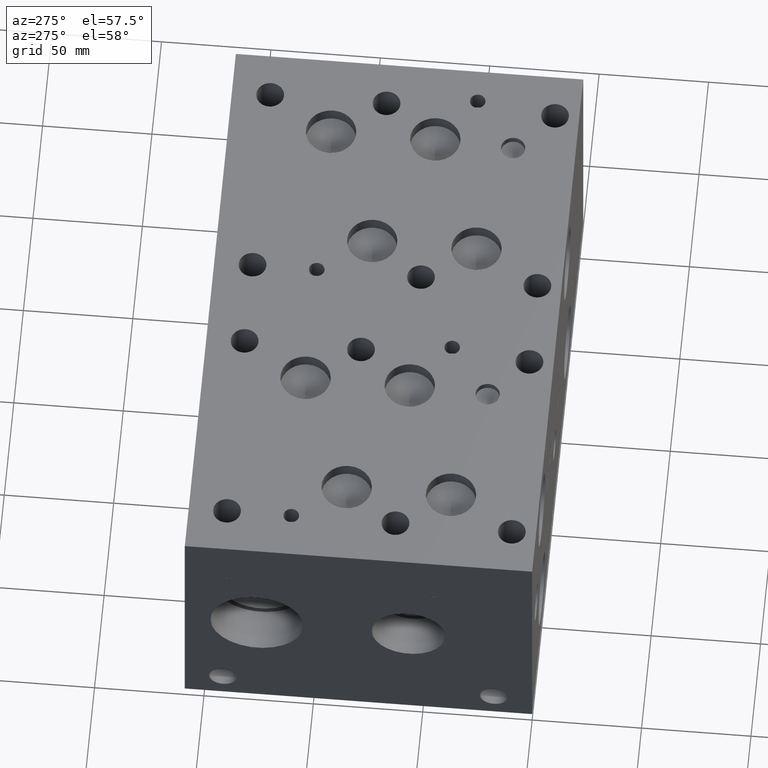
[diagram: clean part render]
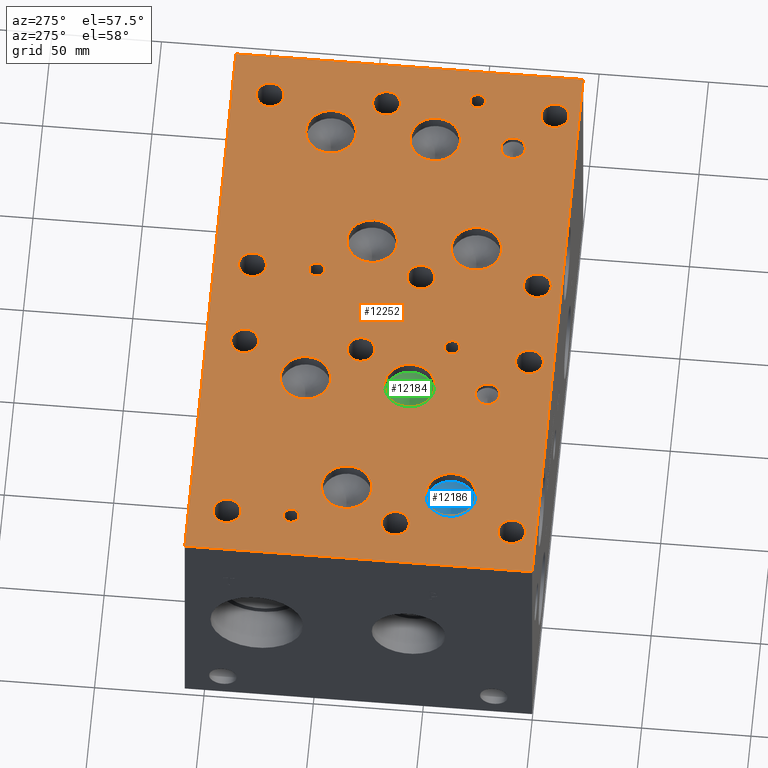
[diagram: same view with three faces highlighted in distinct colors, each labeled with its STEP entity id]
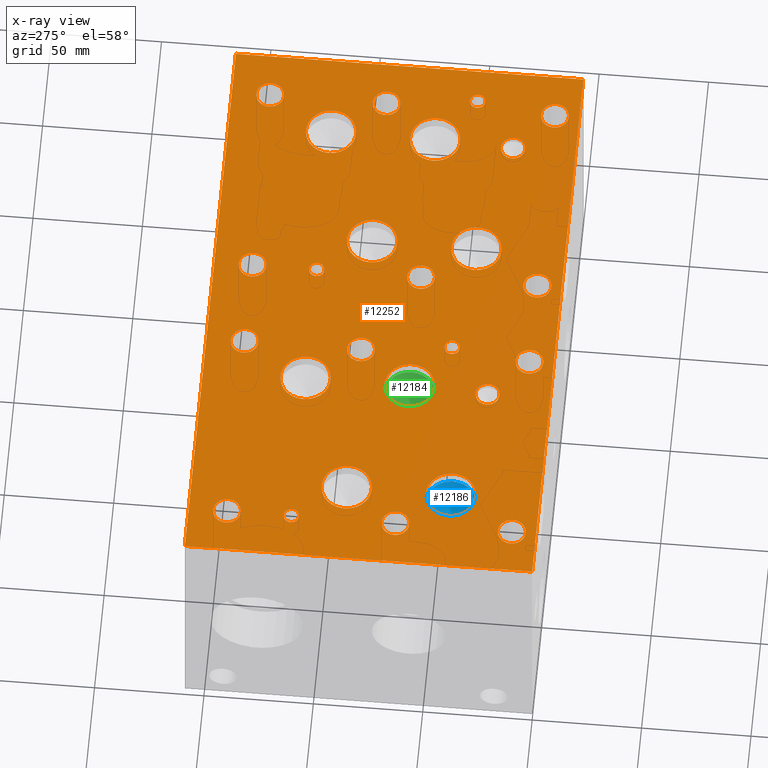
[diagram: x-ray of the same camera — body ghosted, the three highlighted faces saturated]
A machine part, auxiliary view with three faces highlighted in distinct colors.
The next image is the same camera in x-ray (body ghosted, the three faces saturated) — at least one of them is partly hidden behind the body in this view.
Their STEP definitions:

[orange] entity #12252 — the highlighted planar face has unit normal (0, 0, 1).
#240=CIRCLE('',#12773,5.5626);
#241=CIRCLE('',#12774,5.5626);
#244=CIRCLE('',#12779,5.55625);
#245=CIRCLE('',#12780,5.55625);
#248=CIRCLE('',#12785,11.50874);
#249=CIRCLE('',#12786,11.50874);
#252=CIRCLE('',#12791,11.5062);
#253=CIRCLE('',#12792,11.5062);
#256=CIRCLE('',#12797,11.5062);
#257=CIRCLE('',#12798,11.5062);
#260=CIRCLE('',#12803,11.5062);
#261=CIRCLE('',#12804,11.5062);
#264=CIRCLE('',#12809,11.5062);
#265=CIRCLE('',#12810,11.5062);
#268=CIRCLE('',#12815,11.5062);
#269=CIRCLE('',#12816,11.5062);
#272=CIRCLE('',#12821,11.5062);
#273=CIRCLE('',#12822,11.5062);
#276=CIRCLE('',#12827,11.5062);
#277=CIRCLE('',#12828,11.5062);
#280=CIRCLE('',#12833,3.5687);
#281=CIRCLE('',#12834,3.5687);
#284=CIRCLE('',#12839,3.5687);
#285=CIRCLE('',#12840,3.5687);
#288=CIRCLE('',#12845,3.5687);
#289=CIRCLE('',#12846,3.5687);
#292=CIRCLE('',#12851,3.5687);
#293=CIRCLE('',#12852,3.5687);
#299=CIRCLE('',#12861,6.35);
#300=CIRCLE('',#12862,6.35);
#306=CIRCLE('',#12872,6.35);
#307=CIRCLE('',#12873,6.35);
#313=CIRCLE('',#12883,6.35);
#314=CIRCLE('',#12884,6.35);
#320=CIRCLE('',#12894,6.35);
#321=CIRCLE('',#12895,6.35);
#327=CIRCLE('',#12905,6.35);
#328=CIRCLE('',#12906,6.35);
#334=CIRCLE('',#12916,6.35);
#335=CIRCLE('',#12917,6.35);
#341=CIRCLE('',#12927,6.35);
#342=CIRCLE('',#12928,6.35);
#348=CIRCLE('',#12938,6.35);
#349=CIRCLE('',#12939,6.35);
#355=CIRCLE('',#12949,6.35);
#356=CIRCLE('',#12950,6.35);
#362=CIRCLE('',#12960,6.35);
#363=CIRCLE('',#12961,6.35);
#369=CIRCLE('',#12971,6.35);
#370=CIRCLE('',#12972,6.35);
#376=CIRCLE('',#12982,6.35);
#377=CIRCLE('',#12983,6.35);
#466=FACE_BOUND('',#2310,.T.);
#467=FACE_BOUND('',#2311,.T.);
#468=FACE_BOUND('',#2312,.T.);
#469=FACE_BOUND('',#2313,.T.);
#470=FACE_BOUND('',#2314,.T.);
#471=FACE_BOUND('',#2315,.T.);
#472=FACE_BOUND('',#2316,.T.);
#473=FACE_BOUND('',#2317,.T.);
#474=FACE_BOUND('',#2318,.T.);
#475=FACE_BOUND('',#2319,.T.);
#476=FACE_BOUND('',#2320,.T.);
#477=FACE_BOUND('',#2321,.T.);
#478=FACE_BOUND('',#2322,.T.);
#479=FACE_BOUND('',#2323,.T.);
#480=FACE_BOUND('',#2324,.T.);
#481=FACE_BOUND('',#2325,.T.);
#482=FACE_BOUND('',#2326,.T.);
#483=FACE_BOUND('',#2327,.T.);
#484=FACE_BOUND('',#2328,.T.);
#485=FACE_BOUND('',#2329,.T.);
#486=FACE_BOUND('',#2330,.T.);
#487=FACE_BOUND('',#2331,.T.);
#488=FACE_BOUND('',#2332,.T.);
#489=FACE_BOUND('',#2333,.T.);
#490=FACE_BOUND('',#2334,.T.);
#491=FACE_BOUND('',#2335,.T.);
#1591=FACE_OUTER_BOUND('',#2309,.T.);
#2309=EDGE_LOOP('',(#10739,#10740,#10741,#10742));
#2310=EDGE_LOOP('',(#10743,#10744));
#2311=EDGE_LOOP('',(#10745,#10746));
#2312=EDGE_LOOP('',(#10747,#10748));
#2313=EDGE_LOOP('',(#10749,#10750));
#2314=EDGE_LOOP('',(#10751,#10752));
#2315=EDGE_LOOP('',(#10753,#10754));
#2316=EDGE_LOOP('',(#10755,#10756));
#2317=EDGE_LOOP('',(#10757,#10758));
#2318=EDGE_LOOP('',(#10759,#10760));
#2319=EDGE_LOOP('',(#10761,#10762));
#2320=EDGE_LOOP('',(#10763,#10764));
#2321=EDGE_LOOP('',(#10765,#10766));
#2322=EDGE_LOOP('',(#10767,#10768));
#2323=EDGE_LOOP('',(#10769,#10770));
#2324=EDGE_LOOP('',(#10771,#10772));
#2325=EDGE_LOOP('',(#10773,#10774));
#2326=EDGE_LOOP('',(#10775,#10776));
#2327=EDGE_LOOP('',(#10777,#10778));
#2328=EDGE_LOOP('',(#10779,#10780));
#2329=EDGE_LOOP('',(#10781,#10782));
#2330=EDGE_LOOP('',(#10783,#10784));
#2331=EDGE_LOOP('',(#10785,#10786));
#2332=EDGE_LOOP('',(#10787,#10788));
#2333=EDGE_LOOP('',(#10789,#10790));
#2334=EDGE_LOOP('',(#10791,#10792));
#2335=EDGE_LOOP('',(#10793,#10794));
#2395=LINE('',#15817,#3515);
#2455=LINE('',#16092,#3575);
#2714=LINE('',#18180,#3834);
#3456=LINE('',#21080,#4576);
#3515=VECTOR('',#13089,10.);
#3575=VECTOR('',#13203,10.);
#3834=VECTOR('',#13608,10.);
#4576=VECTOR('',#15550,10.);
#4627=VERTEX_POINT('',#15814);
#4628=VERTEX_POINT('',#15816);
#4687=VERTEX_POINT('',#16089);
#4688=VERTEX_POINT('',#16091);
#5584=VERTEX_POINT('',#20639);
#5585=VERTEX_POINT('',#20640);
#5589=VERTEX_POINT('',#20652);
#5590=VERTEX_POINT('',#20653);
#5594=VERTEX_POINT('',#20665);
#5595=VERTEX_POINT('',#20666);
#5599=VERTEX_POINT('',#20678);
#5600=VERTEX_POINT('',#20679);
#5604=VERTEX_POINT('',#20691);
#5605=VERTEX_POINT('',#20692);
#5609=VERTEX_POINT('',#20704);
#5610=VERTEX_POINT('',#20705);
#5614=VERTEX_POINT('',#20717);
#5615=VERTEX_POINT('',#20718);
#5619=VERTEX_POINT('',#20730);
#5620=VERTEX_POINT('',#20731);
#5624=VERTEX_POINT('',#20743);
#5625=VERTEX_POINT('',#20744);
#5629=VERTEX_POINT('',#20756);
#5630=VERTEX_POINT('',#20757);
#5634=VERTEX_POINT('',#20769);
#5635=VERTEX_POINT('',#20770);
#5639=VERTEX_POINT('',#20782);
#5640=VERTEX_POINT('',#20783);
#5644=VERTEX_POINT('',#20795);
#5645=VERTEX_POINT('',#20796);
#5649=VERTEX_POINT('',#20808);
#5650=VERTEX_POINT('',#20809);
#5657=VERTEX_POINT('',#20828);
#5658=VERTEX_POINT('',#20829);
#5665=VERTEX_POINT('',#20850);
#5666=VERTEX_POINT('',#20851);
#5673=VERTEX_POINT('',#20872);
#5674=VERTEX_POINT('',#20873);
#5681=VERTEX_POINT('',#20894);
#5682=VERTEX_POINT('',#20895);
#5689=VERTEX_POINT('',#20916);
#5690=VERTEX_POINT('',#20917);
#5697=VERTEX_POINT('',#20938);
#5698=VERTEX_POINT('',#20939);
#5705=VERTEX_POINT('',#20960);
#5706=VERTEX_POINT('',#20961);
#5713=VERTEX_POINT('',#20982);
#5714=VERTEX_POINT('',#20983);
#5721=VERTEX_POINT('',#21004);
#5722=VERTEX_POINT('',#21005);
#5729=VERTEX_POINT('',#21026);
#5730=VERTEX_POINT('',#21027);
#5737=VERTEX_POINT('',#21048);
#5738=VERTEX_POINT('',#21049);
#5745=VERTEX_POINT('',#21070);
#5746=VERTEX_POINT('',#21071);
#5821=EDGE_CURVE('',#4628,#4627,#2395,.T.);
#5905=EDGE_CURVE('',#4688,#4687,#2455,.T.);
#6354=EDGE_CURVE('',#4687,#4628,#2714,.T.);
#7228=EDGE_CURVE('',#5584,#5585,#240,.T.);
#7229=EDGE_CURVE('',#5585,#5584,#241,.T.);
#7234=EDGE_CURVE('',#5589,#5590,#244,.T.);
#7235=EDGE_CURVE('',#5590,#5589,#245,.T.);
#7240=EDGE_CURVE('',#5594,#5595,#248,.T.);
#7241=EDGE_CURVE('',#5595,#5594,#249,.T.);
#7246=EDGE_CURVE('',#5599,#5600,#252,.T.);
#7247=EDGE_CURVE('',#5600,#5599,#253,.T.);
#7252=EDGE_CURVE('',#5604,#5605,#256,.T.);
#7253=EDGE_CURVE('',#5605,#5604,#257,.T.);
#7258=EDGE_CURVE('',#5609,#5610,#260,.T.);
#7259=EDGE_CURVE('',#5610,#5609,#261,.T.);
#7264=EDGE_CURVE('',#5614,#5615,#264,.T.);
#7265=EDGE_CURVE('',#5615,#5614,#265,.T.);
#7270=EDGE_CURVE('',#5619,#5620,#268,.T.);
#7271=EDGE_CURVE('',#5620,#5619,#269,.T.);
#7276=EDGE_CURVE('',#5624,#5625,#272,.T.);
#7277=EDGE_CURVE('',#5625,#5624,#273,.T.);
#7282=EDGE_CURVE('',#5629,#5630,#276,.T.);
#7283=EDGE_CURVE('',#5630,#5629,#277,.T.);
#7288=EDGE_CURVE('',#5634,#5635,#280,.T.);
#7289=EDGE_CURVE('',#5635,#5634,#281,.T.);
#7294=EDGE_CURVE('',#5639,#5640,#284,.T.);
#7295=EDGE_CURVE('',#5640,#5639,#285,.T.);
#7300=EDGE_CURVE('',#5644,#5645,#288,.T.);
#7301=EDGE_CURVE('',#5645,#5644,#289,.T.);
#7306=EDGE_CURVE('',#5649,#5650,#292,.T.);
#7307=EDGE_CURVE('',#5650,#5649,#293,.T.);
#7315=EDGE_CURVE('',#5657,#5658,#299,.T.);
#7316=EDGE_CURVE('',#5658,#5657,#300,.T.);
#7325=EDGE_CURVE('',#5665,#5666,#306,.T.);
#7326=EDGE_CURVE('',#5666,#5665,#307,.T.);
#7335=EDGE_CURVE('',#5673,#5674,#313,.T.);
#7336=EDGE_CURVE('',#5674,#5673,#314,.T.);
#7345=EDGE_CURVE('',#5681,#5682,#320,.T.);
#7346=EDGE_CURVE('',#5682,#5681,#321,.T.);
#7355=EDGE_CURVE('',#5689,#5690,#327,.T.);
#7356=EDGE_CURVE('',#5690,#5689,#328,.T.);
#7365=EDGE_CURVE('',#5697,#5698,#334,.T.);
#7366=EDGE_CURVE('',#5698,#5697,#335,.T.);
#7375=EDGE_CURVE('',#5705,#5706,#341,.T.);
#7376=EDGE_CURVE('',#5706,#5705,#342,.T.);
#7385=EDGE_CURVE('',#5713,#5714,#348,.T.);
#7386=EDGE_CURVE('',#5714,#5713,#349,.T.);
#7395=EDGE_CURVE('',#5721,#5722,#355,.T.);
#7396=EDGE_CURVE('',#5722,#5721,#356,.T.);
#7405=EDGE_CURVE('',#5729,#5730,#362,.T.);
#7406=EDGE_CURVE('',#5730,#5729,#363,.T.);
#7415=EDGE_CURVE('',#5737,#5738,#369,.T.);
#7416=EDGE_CURVE('',#5738,#5737,#370,.T.);
#7425=EDGE_CURVE('',#5745,#5746,#376,.T.);
#7426=EDGE_CURVE('',#5746,#5745,#377,.T.);
#7430=EDGE_CURVE('',#4627,#4688,#3456,.T.);
#10739=ORIENTED_EDGE('',*,*,#6354,.T.);
#10740=ORIENTED_EDGE('',*,*,#5821,.T.);
#10741=ORIENTED_EDGE('',*,*,#7430,.T.);
#10742=ORIENTED_EDGE('',*,*,#5905,.T.);
#10743=ORIENTED_EDGE('',*,*,#7228,.T.);
#10744=ORIENTED_EDGE('',*,*,#7229,.T.);
#10745=ORIENTED_EDGE('',*,*,#7234,.T.);
#10746=ORIENTED_EDGE('',*,*,#7235,.T.);
#10747=ORIENTED_EDGE('',*,*,#7240,.T.);
#10748=ORIENTED_EDGE('',*,*,#7241,.T.);
#10749=ORIENTED_EDGE('',*,*,#7246,.T.);
#10750=ORIENTED_EDGE('',*,*,#7247,.T.);
#10751=ORIENTED_EDGE('',*,*,#7252,.T.);
#10752=ORIENTED_EDGE('',*,*,#7253,.T.);
#10753=ORIENTED_EDGE('',*,*,#7258,.T.);
#10754=ORIENTED_EDGE('',*,*,#7259,.T.);
#10755=ORIENTED_EDGE('',*,*,#7264,.T.);
#10756=ORIENTED_EDGE('',*,*,#7265,.T.);
#10757=ORIENTED_EDGE('',*,*,#7270,.T.);
#10758=ORIENTED_EDGE('',*,*,#7271,.T.);
#10759=ORIENTED_EDGE('',*,*,#7276,.T.);
#10760=ORIENTED_EDGE('',*,*,#7277,.T.);
#10761=ORIENTED_EDGE('',*,*,#7282,.T.);
#10762=ORIENTED_EDGE('',*,*,#7283,.T.);
#10763=ORIENTED_EDGE('',*,*,#7288,.T.);
#10764=ORIENTED_EDGE('',*,*,#7289,.T.);
#10765=ORIENTED_EDGE('',*,*,#7294,.T.);
#10766=ORIENTED_EDGE('',*,*,#7295,.T.);
#10767=ORIENTED_EDGE('',*,*,#7300,.T.);
#10768=ORIENTED_EDGE('',*,*,#7301,.T.);
#10769=ORIENTED_EDGE('',*,*,#7306,.T.);
#10770=ORIENTED_EDGE('',*,*,#7307,.T.);
#10771=ORIENTED_EDGE('',*,*,#7315,.T.);
#10772=ORIENTED_EDGE('',*,*,#7316,.T.);
#10773=ORIENTED_EDGE('',*,*,#7325,.T.);
#10774=ORIENTED_EDGE('',*,*,#7326,.T.);
#10775=ORIENTED_EDGE('',*,*,#7335,.T.);
#10776=ORIENTED_EDGE('',*,*,#7336,.T.);
#10777=ORIENTED_EDGE('',*,*,#7345,.T.);
#10778=ORIENTED_EDGE('',*,*,#7346,.T.);
#10779=ORIENTED_EDGE('',*,*,#7355,.T.);
#10780=ORIENTED_EDGE('',*,*,#7356,.T.);
#10781=ORIENTED_EDGE('',*,*,#7365,.T.);
#10782=ORIENTED_EDGE('',*,*,#7366,.T.);
#10783=ORIENTED_EDGE('',*,*,#7375,.T.);
#10784=ORIENTED_EDGE('',*,*,#7376,.T.);
#10785=ORIENTED_EDGE('',*,*,#7385,.T.);
#10786=ORIENTED_EDGE('',*,*,#7386,.T.);
#10787=ORIENTED_EDGE('',*,*,#7395,.T.);
#10788=ORIENTED_EDGE('',*,*,#7396,.T.);
#10789=ORIENTED_EDGE('',*,*,#7405,.T.);
#10790=ORIENTED_EDGE('',*,*,#7406,.T.);
#10791=ORIENTED_EDGE('',*,*,#7415,.T.);
#10792=ORIENTED_EDGE('',*,*,#7416,.T.);
#10793=ORIENTED_EDGE('',*,*,#7425,.T.);
#10794=ORIENTED_EDGE('',*,*,#7426,.T.);
#11156=PLANE('',#12989);
#12252=ADVANCED_FACE('',(#1591,#466,#467,#468,#469,#470,#471,#472,#473,
#474,#475,#476,#477,#478,#479,#480,#481,#482,#483,#484,#485,#486,#487,#488,
#489,#490,#491),#11156,.T.);
#12773=AXIS2_PLACEMENT_3D('',#20641,#15058,#15059);
#12774=AXIS2_PLACEMENT_3D('',#20642,#15060,#15061);
#12779=AXIS2_PLACEMENT_3D('',#20654,#15072,#15073);
#12780=AXIS2_PLACEMENT_3D('',#20655,#15074,#15075);
#12785=AXIS2_PLACEMENT_3D('',#20667,#15086,#15087);
#12786=AXIS2_PLACEMENT_3D('',#20668,#15088,#15089);
#12791=AXIS2_PLACEMENT_3D('',#20680,#15100,#15101);
#12792=AXIS2_PLACEMENT_3D('',#20681,#15102,#15103);
#12797=AXIS2_PLACEMENT_3D('',#20693,#15114,#15115);
#12798=AXIS2_PLACEMENT_3D('',#20694,#15116,#15117);
#12803=AXIS2_PLACEMENT_3D('',#20706,#15128,#15129);
#12804=AXIS2_PLACEMENT_3D('',#20707,#15130,#15131);
#12809=AXIS2_PLACEMENT_3D('',#20719,#15142,#15143);
#12810=AXIS2_PLACEMENT_3D('',#20720,#15144,#15145);
#12815=AXIS2_PLACEMENT_3D('',#20732,#15156,#15157);
#12816=AXIS2_PLACEMENT_3D('',#20733,#15158,#15159);
#12821=AXIS2_PLACEMENT_3D('',#20745,#15170,#15171);
#12822=AXIS2_PLACEMENT_3D('',#20746,#15172,#15173);
#12827=AXIS2_PLACEMENT_3D('',#20758,#15184,#15185);
#12828=AXIS2_PLACEMENT_3D('',#20759,#15186,#15187);
#12833=AXIS2_PLACEMENT_3D('',#20771,#15198,#15199);
#12834=AXIS2_PLACEMENT_3D('',#20772,#15200,#15201);
#12839=AXIS2_PLACEMENT_3D('',#20784,#15212,#15213);
#12840=AXIS2_PLACEMENT_3D('',#20785,#15214,#15215);
#12845=AXIS2_PLACEMENT_3D('',#20797,#15226,#15227);
#12846=AXIS2_PLACEMENT_3D('',#20798,#15228,#15229);
#12851=AXIS2_PLACEMENT_3D('',#20810,#15240,#15241);
#12852=AXIS2_PLACEMENT_3D('',#20811,#15242,#15243);
#12861=AXIS2_PLACEMENT_3D('',#20830,#15262,#15263);
#12862=AXIS2_PLACEMENT_3D('',#20831,#15264,#15265);
#12872=AXIS2_PLACEMENT_3D('',#20852,#15287,#15288);
#12873=AXIS2_PLACEMENT_3D('',#20853,#15289,#15290);
#12883=AXIS2_PLACEMENT_3D('',#20874,#15312,#15313);
#12884=AXIS2_PLACEMENT_3D('',#20875,#15314,#15315);
#12894=AXIS2_PLACEMENT_3D('',#20896,#15337,#15338);
#12895=AXIS2_PLACEMENT_3D('',#20897,#15339,#15340);
#12905=AXIS2_PLACEMENT_3D('',#20918,#15362,#15363);
#12906=AXIS2_PLACEMENT_3D('',#20919,#15364,#15365);
#12916=AXIS2_PLACEMENT_3D('',#20940,#15387,#15388);
#12917=AXIS2_PLACEMENT_3D('',#20941,#15389,#15390);
#12927=AXIS2_PLACEMENT_3D('',#20962,#15412,#15413);
#12928=AXIS2_PLACEMENT_3D('',#20963,#15414,#15415);
#12938=AXIS2_PLACEMENT_3D('',#20984,#15437,#15438);
#12939=AXIS2_PLACEMENT_3D('',#20985,#15439,#15440);
#12949=AXIS2_PLACEMENT_3D('',#21006,#15462,#15463);
#12950=AXIS2_PLACEMENT_3D('',#21007,#15464,#15465);
#12960=AXIS2_PLACEMENT_3D('',#21028,#15487,#15488);
#12961=AXIS2_PLACEMENT_3D('',#21029,#15489,#15490);
#12971=AXIS2_PLACEMENT_3D('',#21050,#15512,#15513);
#12972=AXIS2_PLACEMENT_3D('',#21051,#15514,#15515);
#12982=AXIS2_PLACEMENT_3D('',#21072,#15537,#15538);
#12983=AXIS2_PLACEMENT_3D('',#21073,#15539,#15540);
#12989=AXIS2_PLACEMENT_3D('',#21083,#15555,#15556);
#13089=DIRECTION('',(0.,1.,0.));
#13203=DIRECTION('',(0.,-1.,0.));
#13608=DIRECTION('',(1.,0.,0.));
#15058=DIRECTION('center_axis',(0.,0.,-1.));
#15059=DIRECTION('ref_axis',(1.,0.,0.));
#15060=DIRECTION('center_axis',(0.,0.,-1.));
#15061=DIRECTION('ref_axis',(1.,0.,0.));
#15072=DIRECTION('center_axis',(0.,0.,-1.));
#15073=DIRECTION('ref_axis',(1.,0.,0.));
#15074=DIRECTION('center_axis',(0.,0.,-1.));
#15075=DIRECTION('ref_axis',(1.,0.,0.));
#15086=DIRECTION('center_axis',(0.,0.,-1.));
#15087=DIRECTION('ref_axis',(1.,0.,0.));
#15088=DIRECTION('center_axis',(0.,0.,-1.));
#15089=DIRECTION('ref_axis',(1.,0.,0.));
#15100=DIRECTION('center_axis',(0.,0.,-1.));
#15101=DIRECTION('ref_axis',(1.,0.,0.));
#15102=DIRECTION('center_axis',(0.,0.,-1.));
#15103=DIRECTION('ref_axis',(1.,0.,0.));
#15114=DIRECTION('center_axis',(0.,0.,-1.));
#15115=DIRECTION('ref_axis',(1.,0.,0.));
#15116=DIRECTION('center_axis',(0.,0.,-1.));
#15117=DIRECTION('ref_axis',(1.,0.,0.));
#15128=DIRECTION('center_axis',(0.,0.,-1.));
#15129=DIRECTION('ref_axis',(1.,0.,0.));
#15130=DIRECTION('center_axis',(0.,0.,-1.));
#15131=DIRECTION('ref_axis',(1.,0.,0.));
#15142=DIRECTION('center_axis',(0.,0.,-1.));
#15143=DIRECTION('ref_axis',(1.,0.,0.));
#15144=DIRECTION('center_axis',(0.,0.,-1.));
#15145=DIRECTION('ref_axis',(1.,0.,0.));
#15156=DIRECTION('center_axis',(0.,0.,-1.));
#15157=DIRECTION('ref_axis',(1.,0.,0.));
#15158=DIRECTION('center_axis',(0.,0.,-1.));
#15159=DIRECTION('ref_axis',(1.,0.,0.));
#15170=DIRECTION('center_axis',(0.,0.,-1.));
#15171=DIRECTION('ref_axis',(1.,0.,0.));
#15172=DIRECTION('center_axis',(0.,0.,-1.));
#15173=DIRECTION('ref_axis',(1.,0.,0.));
#15184=DIRECTION('center_axis',(0.,0.,-1.));
#15185=DIRECTION('ref_axis',(1.,0.,0.));
#15186=DIRECTION('center_axis',(0.,0.,-1.));
#15187=DIRECTION('ref_axis',(1.,0.,0.));
#15198=DIRECTION('center_axis',(0.,0.,-1.));
#15199=DIRECTION('ref_axis',(1.,0.,0.));
#15200=DIRECTION('center_axis',(0.,0.,-1.));
#15201=DIRECTION('ref_axis',(1.,0.,0.));
#15212=DIRECTION('center_axis',(0.,0.,-1.));
#15213=DIRECTION('ref_axis',(1.,0.,0.));
#15214=DIRECTION('center_axis',(0.,0.,-1.));
#15215=DIRECTION('ref_axis',(1.,0.,0.));
#15226=DIRECTION('center_axis',(0.,0.,-1.));
#15227=DIRECTION('ref_axis',(1.,0.,0.));
#15228=DIRECTION('center_axis',(0.,0.,-1.));
#15229=DIRECTION('ref_axis',(1.,0.,0.));
#15240=DIRECTION('center_axis',(0.,0.,-1.));
#15241=DIRECTION('ref_axis',(1.,0.,0.));
#15242=DIRECTION('center_axis',(0.,0.,-1.));
#15243=DIRECTION('ref_axis',(1.,0.,0.));
#15262=DIRECTION('center_axis',(0.,0.,-1.));
#15263=DIRECTION('ref_axis',(1.,0.,0.));
#15264=DIRECTION('center_axis',(0.,0.,-1.));
#15265=DIRECTION('ref_axis',(1.,0.,0.));
#15287=DIRECTION('center_axis',(0.,0.,-1.));
#15288=DIRECTION('ref_axis',(1.,0.,0.));
#15289=DIRECTION('center_axis',(0.,0.,-1.));
#15290=DIRECTION('ref_axis',(1.,0.,0.));
#15312=DIRECTION('center_axis',(0.,0.,-1.));
#15313=DIRECTION('ref_axis',(1.,0.,0.));
#15314=DIRECTION('center_axis',(0.,0.,-1.));
#15315=DIRECTION('ref_axis',(1.,0.,0.));
#15337=DIRECTION('center_axis',(0.,0.,-1.));
#15338=DIRECTION('ref_axis',(1.,0.,0.));
#15339=DIRECTION('center_axis',(0.,0.,-1.));
#15340=DIRECTION('ref_axis',(1.,0.,0.));
#15362=DIRECTION('center_axis',(0.,0.,-1.));
#15363=DIRECTION('ref_axis',(1.,0.,0.));
#15364=DIRECTION('center_axis',(0.,0.,-1.));
#15365=DIRECTION('ref_axis',(1.,0.,0.));
#15387=DIRECTION('center_axis',(0.,0.,-1.));
#15388=DIRECTION('ref_axis',(1.,0.,0.));
#15389=DIRECTION('center_axis',(0.,0.,-1.));
#15390=DIRECTION('ref_axis',(1.,0.,0.));
#15412=DIRECTION('center_axis',(0.,0.,-1.));
#15413=DIRECTION('ref_axis',(1.,0.,0.));
#15414=DIRECTION('center_axis',(0.,0.,-1.));
#15415=DIRECTION('ref_axis',(1.,0.,0.));
#15437=DIRECTION('center_axis',(0.,0.,-1.));
#15438=DIRECTION('ref_axis',(1.,0.,0.));
#15439=DIRECTION('center_axis',(0.,0.,-1.));
#15440=DIRECTION('ref_axis',(1.,0.,0.));
#15462=DIRECTION('center_axis',(0.,0.,-1.));
#15463=DIRECTION('ref_axis',(1.,0.,0.));
#15464=DIRECTION('center_axis',(0.,0.,-1.));
#15465=DIRECTION('ref_axis',(1.,0.,0.));
#15487=DIRECTION('center_axis',(0.,0.,-1.));
#15488=DIRECTION('ref_axis',(1.,0.,0.));
#15489=DIRECTION('center_axis',(0.,0.,-1.));
#15490=DIRECTION('ref_axis',(1.,0.,0.));
#15512=DIRECTION('center_axis',(0.,0.,-1.));
#15513=DIRECTION('ref_axis',(1.,0.,0.));
#15514=DIRECTION('center_axis',(0.,0.,-1.));
#15515=DIRECTION('ref_axis',(1.,0.,0.));
#15537=DIRECTION('center_axis',(0.,0.,-1.));
#15538=DIRECTION('ref_axis',(1.,0.,0.));
#15539=DIRECTION('center_axis',(0.,0.,-1.));
#15540=DIRECTION('ref_axis',(1.,0.,0.));
#15550=DIRECTION('',(-1.,0.,0.));
#15555=DIRECTION('center_axis',(0.,0.,1.));
#15556=DIRECTION('ref_axis',(1.,0.,0.));
#15814=CARTESIAN_POINT('',(266.7,158.75,120.65));
#15816=CARTESIAN_POINT('',(266.7,0.,120.65));
#15817=CARTESIAN_POINT('',(266.7,0.,120.65));
#16089=CARTESIAN_POINT('',(0.,0.,120.65));
#16091=CARTESIAN_POINT('',(0.,158.75,120.65));
#16092=CARTESIAN_POINT('',(0.,158.75,120.65));
#18180=CARTESIAN_POINT('',(0.,0.,120.65));
#20639=CARTESIAN_POINT('',(232.5624,28.575,120.65));
#20640=CARTESIAN_POINT('',(221.4372,28.575,120.65));
#20641=CARTESIAN_POINT('Origin',(226.9998,28.575,120.65));
#20642=CARTESIAN_POINT('Origin',(226.9998,28.575,120.65));
#20652=CARTESIAN_POINT('',(99.21875,28.56992,120.65));
#20653=CARTESIAN_POINT('',(88.10625,28.56992,120.65));
#20654=CARTESIAN_POINT('Origin',(93.6625,28.56992,120.65));
#20655=CARTESIAN_POINT('Origin',(93.6625,28.56992,120.65));
#20665=CARTESIAN_POINT('',(106.75874,111.9124,120.65));
#20666=CARTESIAN_POINT('',(83.74126,111.9124,120.65));
#20667=CARTESIAN_POINT('Origin',(95.25,111.9124,120.65));
#20668=CARTESIAN_POINT('Origin',(95.25,111.9124,120.65));
#20678=CARTESIAN_POINT('',(182.9562,88.1126,120.65));
#20679=CARTESIAN_POINT('',(159.9438,88.1126,120.65));
#20680=CARTESIAN_POINT('Origin',(171.45,88.1126,120.65));
#20681=CARTESIAN_POINT('Origin',(171.45,88.1126,120.65));
#20691=CARTESIAN_POINT('',(240.1062,64.2874,120.65));
#20692=CARTESIAN_POINT('',(217.0938,64.2874,120.65));
#20693=CARTESIAN_POINT('Origin',(228.6,64.2874,120.65));
#20694=CARTESIAN_POINT('Origin',(228.6,64.2874,120.65));
#20704=CARTESIAN_POINT('',(49.6062,88.1126,120.65));
#20705=CARTESIAN_POINT('',(26.5938,88.1126,120.65));
#20706=CARTESIAN_POINT('Origin',(38.1,88.1126,120.65));
#20707=CARTESIAN_POINT('Origin',(38.1,88.1126,120.65));
#20717=CARTESIAN_POINT('',(106.7562,64.2874,120.65));
#20718=CARTESIAN_POINT('',(83.7438,64.2874,120.65));
#20719=CARTESIAN_POINT('Origin',(95.25,64.2874,120.65));
#20720=CARTESIAN_POINT('Origin',(95.25,64.2874,120.65));
#20730=CARTESIAN_POINT('',(49.6062,40.4622,120.65));
#20731=CARTESIAN_POINT('',(26.5938,40.4622,120.65));
#20732=CARTESIAN_POINT('Origin',(38.1,40.4622,120.65));
#20733=CARTESIAN_POINT('Origin',(38.1,40.4622,120.65));
#20743=CARTESIAN_POINT('',(240.1062,111.9124,120.65));
#20744=CARTESIAN_POINT('',(217.0938,111.9124,120.65));
#20745=CARTESIAN_POINT('Origin',(228.6,111.9124,120.65));
#20746=CARTESIAN_POINT('Origin',(228.6,111.9124,120.65));
#20756=CARTESIAN_POINT('',(182.9562,40.4622,120.65));
#20757=CARTESIAN_POINT('',(159.9438,40.4622,120.65));
#20758=CARTESIAN_POINT('Origin',(171.45,40.4622,120.65));
#20759=CARTESIAN_POINT('Origin',(171.45,40.4622,120.65));
#20769=CARTESIAN_POINT('',(157.5435,111.9124,120.65));
#20770=CARTESIAN_POINT('',(150.4061,111.9124,120.65));
#20771=CARTESIAN_POINT('Origin',(153.9748,111.9124,120.65));
#20772=CARTESIAN_POINT('Origin',(153.9748,111.9124,120.65));
#20782=CARTESIAN_POINT('',(24.1935,111.9124,120.65));
#20783=CARTESIAN_POINT('',(17.0561,111.9124,120.65));
#20784=CARTESIAN_POINT('Origin',(20.6248,111.9124,120.65));
#20785=CARTESIAN_POINT('Origin',(20.6248,111.9124,120.65));
#20795=CARTESIAN_POINT('',(121.0437,46.8376,120.65));
#20796=CARTESIAN_POINT('',(113.9063,46.8376,120.65));
#20797=CARTESIAN_POINT('Origin',(117.475,46.8376,120.65));
#20798=CARTESIAN_POINT('Origin',(117.475,46.8376,120.65));
#20808=CARTESIAN_POINT('',(254.3937,46.8376,120.65));
#20809=CARTESIAN_POINT('',(247.2563,46.8376,120.65));
#20810=CARTESIAN_POINT('Origin',(250.825,46.8376,120.65));
#20811=CARTESIAN_POINT('Origin',(250.825,46.8376,120.65));
#20828=CARTESIAN_POINT('',(160.3248,11.0998,120.65));
#20829=CARTESIAN_POINT('',(147.6248,11.0998,120.65));
#20830=CARTESIAN_POINT('Origin',(153.9748,11.0998,120.65));
#20831=CARTESIAN_POINT('Origin',(153.9748,11.0998,120.65));
#20850=CARTESIAN_POINT('',(252.4252,88.0872,120.65));
#20851=CARTESIAN_POINT('',(239.7252,88.0872,120.65));
#20852=CARTESIAN_POINT('Origin',(246.0752,88.0872,120.65));
#20853=CARTESIAN_POINT('Origin',(246.0752,88.0872,120.65));
#20872=CARTESIAN_POINT('',(160.3248,141.2748,120.65));
#20873=CARTESIAN_POINT('',(147.6248,141.2748,120.65));
#20874=CARTESIAN_POINT('Origin',(153.9748,141.2748,120.65));
#20875=CARTESIAN_POINT('Origin',(153.9748,141.2748,120.65));
#20894=CARTESIAN_POINT('',(26.9875,11.10742,120.65));
#20895=CARTESIAN_POINT('',(14.2875,11.10742,120.65));
#20896=CARTESIAN_POINT('Origin',(20.6375,11.10742,120.65));
#20897=CARTESIAN_POINT('Origin',(20.6375,11.10742,120.65));
#20916=CARTESIAN_POINT('',(119.0752,88.0999,120.65));
#20917=CARTESIAN_POINT('',(106.3752,88.0999,120.65));
#20918=CARTESIAN_POINT('Origin',(112.7252,88.0999,120.65));
#20919=CARTESIAN_POINT('Origin',(112.7252,88.0999,120.65));
#20938=CARTESIAN_POINT('',(26.9748,141.2748,120.65));
#20939=CARTESIAN_POINT('',(14.2748,141.2748,120.65));
#20940=CARTESIAN_POINT('Origin',(20.6248,141.2748,120.65));
#20941=CARTESIAN_POINT('Origin',(20.6248,141.2748,120.65));
#20960=CARTESIAN_POINT('',(119.0625,141.27988,120.65));
#20961=CARTESIAN_POINT('',(106.3625,141.27988,120.65));
#20962=CARTESIAN_POINT('Origin',(112.7125,141.27988,120.65));
#20963=CARTESIAN_POINT('Origin',(112.7125,141.27988,120.65));
#20982=CARTESIAN_POINT('',(119.0625,11.10742,120.65));
#20983=CARTESIAN_POINT('',(106.3625,11.10742,120.65));
#20984=CARTESIAN_POINT('Origin',(112.7125,11.10742,120.65));
#20985=CARTESIAN_POINT('Origin',(112.7125,11.10742,120.65));
#21004=CARTESIAN_POINT('',(27.0002,64.2874,120.65));
#21005=CARTESIAN_POINT('',(14.3002,64.2874,120.65));
#21006=CARTESIAN_POINT('Origin',(20.6502,64.2874,120.65));
#21007=CARTESIAN_POINT('Origin',(20.6502,64.2874,120.65));
#21026=CARTESIAN_POINT('',(252.3998,141.2748,120.65));
#21027=CARTESIAN_POINT('',(239.6998,141.2748,120.65));
#21028=CARTESIAN_POINT('Origin',(246.0498,141.2748,120.65));
#21029=CARTESIAN_POINT('Origin',(246.0498,141.2748,120.65));
#21048=CARTESIAN_POINT('',(252.3998,11.0998,120.65));
#21049=CARTESIAN_POINT('',(239.6998,11.0998,120.65));
#21050=CARTESIAN_POINT('Origin',(246.0498,11.0998,120.65));
#21051=CARTESIAN_POINT('Origin',(246.0498,11.0998,120.65));
#21070=CARTESIAN_POINT('',(160.3502,64.2874,120.65));
#21071=CARTESIAN_POINT('',(147.6502,64.2874,120.65));
#21072=CARTESIAN_POINT('Origin',(154.0002,64.2874,120.65));
#21073=CARTESIAN_POINT('Origin',(154.0002,64.2874,120.65));
#21080=CARTESIAN_POINT('',(266.7,158.75,120.65));
#21083=CARTESIAN_POINT('Origin',(133.35,79.375,120.65));

[blue] entity #12186 — the highlighted conical surface has half-angle 60 deg.
#109=CONICAL_SURFACE('',#12811,5.7531,1.0471975511966);
#266=CIRCLE('',#12812,11.5062);
#267=CIRCLE('',#12813,11.5062);
#1525=FACE_OUTER_BOUND('',#2231,.T.);
#2231=EDGE_LOOP('',(#10432,#10433,#10434,#10435));
#3405=LINE('',#20727,#4525);
#4525=VECTOR('',#15151,5.7531);
#5616=VERTEX_POINT('',#20723);
#5617=VERTEX_POINT('',#20724);
#5618=VERTEX_POINT('',#20726);
#7267=EDGE_CURVE('',#5616,#5617,#266,.T.);
#7268=EDGE_CURVE('',#5617,#5618,#3405,.T.);
#7269=EDGE_CURVE('',#5617,#5616,#267,.T.);
#10432=ORIENTED_EDGE('',*,*,#7267,.T.);
#10433=ORIENTED_EDGE('',*,*,#7268,.T.);
#10434=ORIENTED_EDGE('',*,*,#7268,.F.);
#10435=ORIENTED_EDGE('',*,*,#7269,.T.);
#12186=ADVANCED_FACE('',(#1525),#109,.F.);
#12811=AXIS2_PLACEMENT_3D('',#20722,#15147,#15148);
#12812=AXIS2_PLACEMENT_3D('',#20725,#15149,#15150);
#12813=AXIS2_PLACEMENT_3D('',#20728,#15152,#15153);
#15147=DIRECTION('center_axis',(0.,0.,1.));
#15148=DIRECTION('ref_axis',(1.,0.,0.));
#15149=DIRECTION('center_axis',(0.,0.,1.));
#15150=DIRECTION('ref_axis',(1.,0.,0.));
#15151=DIRECTION('',(0.866025403784439,1.06057523872491E-16,-0.5));
#15152=DIRECTION('center_axis',(0.,0.,1.));
#15153=DIRECTION('ref_axis',(1.,0.,0.));
#20722=CARTESIAN_POINT('Origin',(38.1,40.4622,110.685336166325));
#20723=CARTESIAN_POINT('',(49.6062,40.4622,114.00689));
#20724=CARTESIAN_POINT('',(26.5938,40.4622,114.00689));
#20725=CARTESIAN_POINT('Origin',(38.1,40.4622,114.00689));
#20726=CARTESIAN_POINT('',(38.1,40.4622,107.36378233265));
#20727=CARTESIAN_POINT('',(32.3469,40.4622,110.685336166325));
#20728=CARTESIAN_POINT('Origin',(38.1,40.4622,114.00689));

[green] entity #12184 — the highlighted conical surface has half-angle 60 deg.
#108=CONICAL_SURFACE('',#12805,5.7531,1.0471975511966);
#262=CIRCLE('',#12806,11.5062);
#263=CIRCLE('',#12807,11.5062);
#1523=FACE_OUTER_BOUND('',#2229,.T.);
#2229=EDGE_LOOP('',(#10422,#10423,#10424,#10425));
#3403=LINE('',#20714,#4523);
#4523=VECTOR('',#15137,5.7531);
#5611=VERTEX_POINT('',#20710);
#5612=VERTEX_POINT('',#20711);
#5613=VERTEX_POINT('',#20713);
#7261=EDGE_CURVE('',#5611,#5612,#262,.T.);
#7262=EDGE_CURVE('',#5612,#5613,#3403,.T.);
#7263=EDGE_CURVE('',#5612,#5611,#263,.T.);
#10422=ORIENTED_EDGE('',*,*,#7261,.T.);
#10423=ORIENTED_EDGE('',*,*,#7262,.T.);
#10424=ORIENTED_EDGE('',*,*,#7262,.F.);
#10425=ORIENTED_EDGE('',*,*,#7263,.T.);
#12184=ADVANCED_FACE('',(#1523),#108,.F.);
#12805=AXIS2_PLACEMENT_3D('',#20709,#15133,#15134);
#12806=AXIS2_PLACEMENT_3D('',#20712,#15135,#15136);
#12807=AXIS2_PLACEMENT_3D('',#20715,#15138,#15139);
#15133=DIRECTION('center_axis',(0.,0.,1.));
#15134=DIRECTION('ref_axis',(1.,0.,0.));
#15135=DIRECTION('center_axis',(0.,0.,1.));
#15136=DIRECTION('ref_axis',(1.,0.,0.));
#15137=DIRECTION('',(0.866025403784439,1.06057523872491E-16,-0.5));
#15138=DIRECTION('center_axis',(0.,0.,1.));
#15139=DIRECTION('ref_axis',(1.,0.,0.));
#20709=CARTESIAN_POINT('Origin',(95.25,64.2874,110.685336166325));
#20710=CARTESIAN_POINT('',(106.7562,64.2874,114.00689));
#20711=CARTESIAN_POINT('',(83.7438,64.2874,114.00689));
#20712=CARTESIAN_POINT('Origin',(95.25,64.2874,114.00689));
#20713=CARTESIAN_POINT('',(95.25,64.2874,107.36378233265));
#20714=CARTESIAN_POINT('',(89.4969,64.2874,110.685336166325));
#20715=CARTESIAN_POINT('Origin',(95.25,64.2874,114.00689));